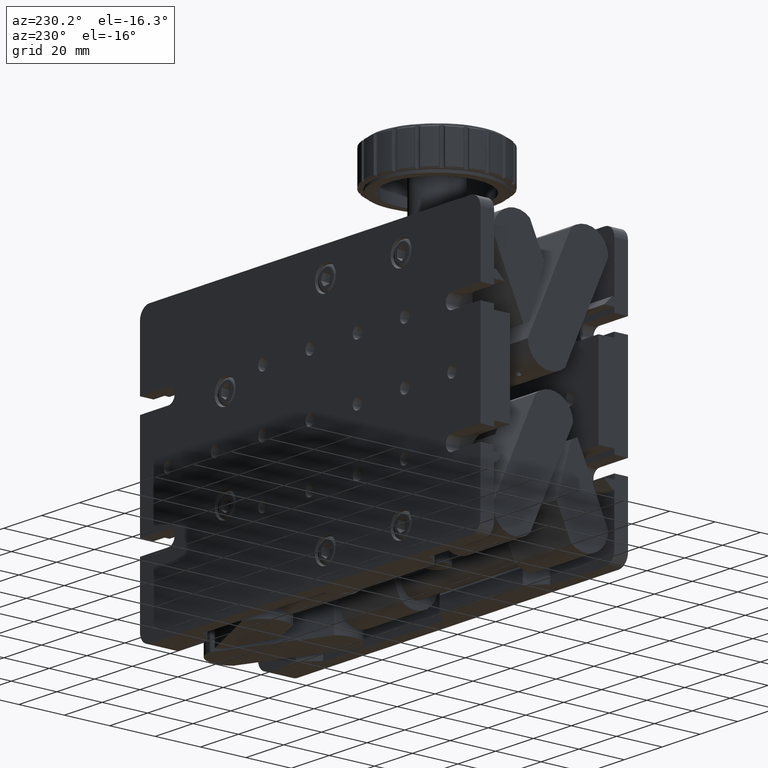
[diagram: clean part render]
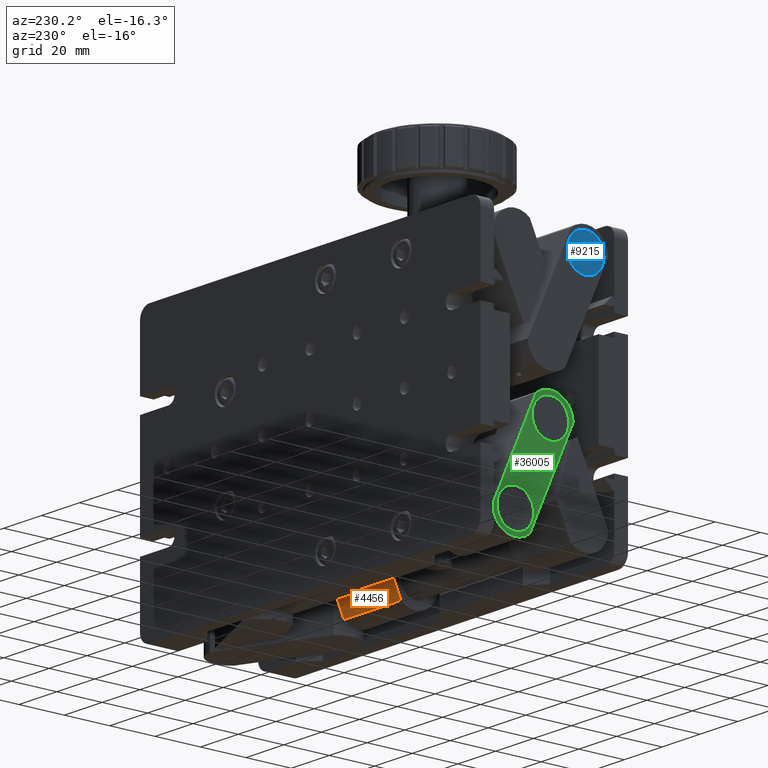
[diagram: same view with three faces highlighted in distinct colors, each labeled with its STEP entity id]
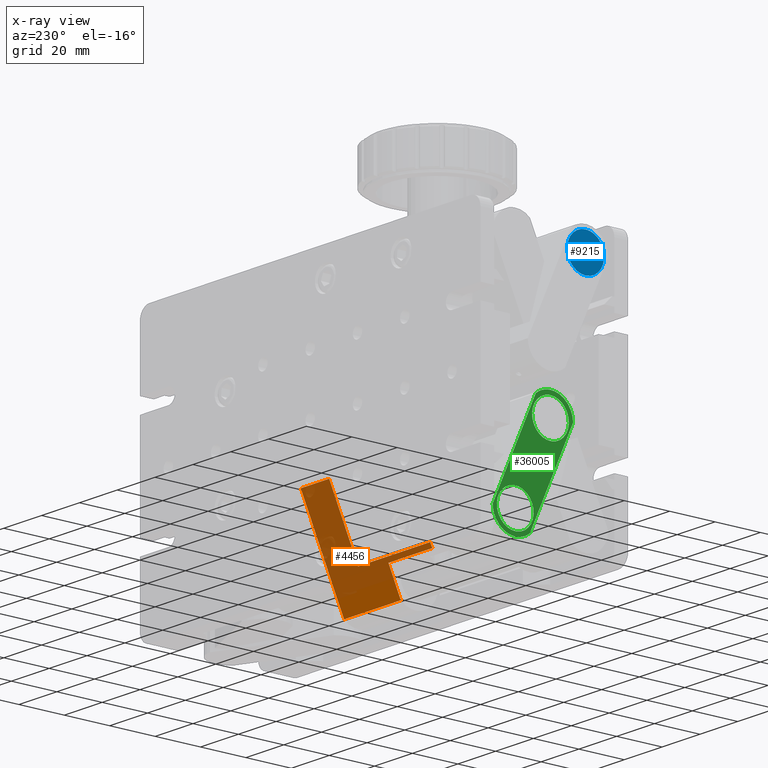
[diagram: x-ray of the same camera — body ghosted, the three highlighted faces saturated]
A machine part, auxiliary view with three faces highlighted in distinct colors.
The next image is the same camera in x-ray (body ghosted, the three faces saturated) — at least one of them is partly hidden behind the body in this view.
Their STEP definitions:

[orange] entity #4456 — the highlighted planar face has unit normal (0, -0.913, 0.4079).
#7 = CARTESIAN_POINT ( 'NONE',  ( -87.99999999999975800, 29.75455774710013700, -41.51479592859999500 ) ) ;
#535 = CARTESIAN_POINT ( 'NONE',  ( 16.99999999999985800, 44.79620801757791800, -7.845662502743422800 ) ) ;
#1377 = EDGE_CURVE ( 'NONE', #51273, #4508, #35140, .T. ) ;
#3192 = CARTESIAN_POINT ( 'NONE',  ( -21.07949976497319600, 29.75455774710015100, -41.51479592859993800 ) ) ;
#4456 = ADVANCED_FACE ( 'NONE', ( #62793 ), #21611, .F. ) ;
#4483 = DIRECTION ( 'NONE',  ( 1.000000000000000000, 4.732300826004708100E-017, 1.058711050402823100E-016 ) ) ;
#4508 = VERTEX_POINT ( 'NONE', #31837 ) ;
#4783 = ORIENTED_EDGE ( 'NONE', *, *, #19665, .T. ) ;
#6203 = ORIENTED_EDGE ( 'NONE', *, *, #8650, .T. ) ;
#6870 = LINE ( 'NONE', #7, #38122 ) ;
#8094 = CARTESIAN_POINT ( 'NONE',  ( -21.10755858015620800, 29.46365465077749200, -42.16595155234858800 ) ) ;
#8283 = CARTESIAN_POINT ( 'NONE',  ( 1.999999999999897600, 23.43928871165994100, -55.65085360517972600 ) ) ;
#8650 = EDGE_CURVE ( 'NONE', #27781, #43756, #15634, .T. ) ;
#9056 = ORIENTED_EDGE ( 'NONE', *, *, #22208, .F. ) ;
#11711 = DIRECTION ( 'NONE',  ( -1.000000000000000000, -4.732300826004708100E-017, -1.058711050402823100E-016 ) ) ;
#14581 = VECTOR ( 'NONE', #51820, 1000.000000000000000 ) ;
#14645 = ORIENTED_EDGE ( 'NONE', *, *, #46507, .F. ) ;
#15030 = LINE ( 'NONE', #18708, #36389 ) ;
#15634 = LINE ( 'NONE', #535, #22536 ) ;
#16047 = CARTESIAN_POINT ( 'NONE',  ( -87.99999999999975800, 44.79620801757790400, -7.845662502743384600 ) ) ;
#17530 = AXIS2_PLACEMENT_3D ( 'NONE', #16047, #55010, #60364 ) ;
#18708 = CARTESIAN_POINT ( 'NONE',  ( 1.999999999999897600, 21.13831328073574800, -60.80134224175304800 ) ) ;
#18986 = CARTESIAN_POINT ( 'NONE',  ( -21.18569522680609300, 28.88831328073578000, -43.45379198242221700 ) ) ;
#19665 = EDGE_CURVE ( 'NONE', #40164, #51273, #29183, .T. ) ;
#21611 = PLANE ( 'NONE',  #17530 ) ;
#22208 = EDGE_CURVE ( 'NONE', #42653, #30934, #34880, .T. ) ;
#22536 = VECTOR ( 'NONE', #34601, 1000.000000000000000 ) ;
#27781 = VERTEX_POINT ( 'NONE', #38166 ) ;
#28399 = DIRECTION ( 'NONE',  ( 1.000000000000000000, 1.507032115547909100E-019, 2.809201787083444500E-019 ) ) ;
#28851 = EDGE_CURVE ( 'NONE', #4508, #27781, #6870, .T. ) ;
#28866 = CARTESIAN_POINT ( 'NONE',  ( 31.99999999999987600, 23.43928871165996200, -55.65085360517971200 ) ) ;
#29183 = LINE ( 'NONE', #46427, #60411 ) ;
#30483 = CARTESIAN_POINT ( 'NONE',  ( 1.999999999999988000, 28.88831328073576500, -43.45379198242231000 ) ) ;
#30708 = EDGE_CURVE ( 'NONE', #45055, #40164, #15030, .T. ) ;
#30934 = VERTEX_POINT ( 'NONE', #49288 ) ;
#31066 = ORIENTED_EDGE ( 'NONE', *, *, #1377, .T. ) ;
#31837 = CARTESIAN_POINT ( 'NONE',  ( -21.07949976497319600, 29.75455774710015100, -41.51479592859993800 ) ) ;
#31995 = LINE ( 'NONE', #53092, #42666 ) ;
#32313 = ORIENTED_EDGE ( 'NONE', *, *, #55772, .T. ) ;
#32544 = EDGE_LOOP ( 'NONE', ( #14645, #37602, #4783, #31066, #52716, #6203, #32313, #9056 ) ) ;
#33499 = DIRECTION ( 'NONE',  ( -3.179593057106406400E-019, 0.4078947368421031400, 0.9130289610173991700 ) ) ;
#34152 = VECTOR ( 'NONE', #33499, 1000.000000000000000 ) ;
#34601 = DIRECTION ( 'NONE',  ( -3.179593057105420300E-019, 0.4078947368421031400, 0.9130289610173991700 ) ) ;
#34880 = LINE ( 'NONE', #62678, #34152 ) ;
#35140 =( BOUNDED_CURVE ( )  B_SPLINE_CURVE ( 3, ( #47871, #52554, #8094, #3192 ),
 .UNSPECIFIED., .F., .F. ) 
 B_SPLINE_CURVE_WITH_KNOTS ( ( 4, 4 ),
 ( 1.339945662735004400, 1.419940952688543600 ),
 .UNSPECIFIED. ) 
 CURVE ( )  GEOMETRIC_REPRESENTATION_ITEM ( )  RATIONAL_B_SPLINE_CURVE ( ( 1.000000000000000000, 0.9994668005560118900, 0.9994668005560118900, 1.000000000000000000 ) ) 
 REPRESENTATION_ITEM ( '' )  );
#36389 = VECTOR ( 'NONE', #57899, 1000.000000000000000 ) ;
#37602 = ORIENTED_EDGE ( 'NONE', *, *, #30708, .T. ) ;
#38122 = VECTOR ( 'NONE', #4483, 1000.000000000000000 ) ;
#38166 = CARTESIAN_POINT ( 'NONE',  ( 16.99999999999985800, 29.75455774710015400, -41.51479592859990200 ) ) ;
#40164 = VERTEX_POINT ( 'NONE', #30483 ) ;
#42653 = VERTEX_POINT ( 'NONE', #28866 ) ;
#42666 = VECTOR ( 'NONE', #28399, 1000.000000000000000 ) ;
#43756 = VERTEX_POINT ( 'NONE', #46778 ) ;
#45055 = VERTEX_POINT ( 'NONE', #8283 ) ;
#46427 = CARTESIAN_POINT ( 'NONE',  ( 1.999999999999988000, 28.88831328073576500, -43.45379198242231000 ) ) ;
#46507 = EDGE_CURVE ( 'NONE', #45055, #42653, #31995, .T. ) ;
#46778 = CARTESIAN_POINT ( 'NONE',  ( 16.99999999999997900, 42.49523258665367800, -12.99615113931675700 ) ) ;
#47871 = CARTESIAN_POINT ( 'NONE',  ( -21.18569522680609300, 28.88831328073578000, -43.45379198242221700 ) ) ;
#49288 = CARTESIAN_POINT ( 'NONE',  ( 31.99999999999987600, 42.49523258665365000, -12.99615113931677400 ) ) ;
#51273 = VERTEX_POINT ( 'NONE', #18986 ) ;
#51413 = CARTESIAN_POINT ( 'NONE',  ( -87.99999999999974400, 42.49523258665367800, -12.99615113931660400 ) ) ;
#51820 = DIRECTION ( 'NONE',  ( 1.000000000000000000, 1.507032115547909100E-019, 2.809201787083444500E-019 ) ) ;
#52554 = CARTESIAN_POINT ( 'NONE',  ( -21.14297595195679200, 29.17475245283139900, -42.81262837801322300 ) ) ;
#52716 = ORIENTED_EDGE ( 'NONE', *, *, #28851, .T. ) ;
#53092 = CARTESIAN_POINT ( 'NONE',  ( -87.99999999999975800, 23.43928871165995500, -55.65085360517971200 ) ) ;
#53467 = LINE ( 'NONE', #51413, #14581 ) ;
#55010 = DIRECTION ( 'NONE',  ( 2.301053429997931900E-020, -0.9130289610173992800, 0.4078947368421031400 ) ) ;
#55772 = EDGE_CURVE ( 'NONE', #43756, #30934, #53467, .T. ) ;
#57899 = DIRECTION ( 'NONE',  ( -1.829204304611620100E-016, 0.4078947368421031400, 0.9130289610173991700 ) ) ;
#60364 = DIRECTION ( 'NONE',  ( -1.000000000000000000, -1.507032115547908900E-019, -2.809201787083444000E-019 ) ) ;
#60411 = VECTOR ( 'NONE', #11711, 1000.000000000000000 ) ;
#62678 = CARTESIAN_POINT ( 'NONE',  ( 31.99999999999987600, 44.79620801757786100, -7.845662502743579100 ) ) ;
#62793 = FACE_OUTER_BOUND ( 'NONE', #32544, .T. ) ;

[blue] entity #9215 — the highlighted planar face has unit normal (-1, 0, 0).
#1955 = EDGE_LOOP ( 'NONE', ( #15341, #28468 ) ) ;
#2274 = CARTESIAN_POINT ( 'NONE',  ( -88.00000000000000000, 17.00000000000026600, 47.99999999999980800 ) ) ;
#4082 = DIRECTION ( 'NONE',  ( -1.000000000000000000, 9.134674007075038100E-016, -2.232431525478988200E-016 ) ) ;
#7766 = AXIS2_PLACEMENT_3D ( 'NONE', #62002, #4082, #57078 ) ;
#7998 = FACE_OUTER_BOUND ( 'NONE', #1955, .T. ) ;
#9215 = ADVANCED_FACE ( 'NONE', ( #7998 ), #45754, .T. ) ;
#14452 = CARTESIAN_POINT ( 'NONE',  ( -88.00000000000000000, 17.00000000000028100, 56.14999999999981400 ) ) ;
#15341 = ORIENTED_EDGE ( 'NONE', *, *, #31587, .T. ) ;
#16123 = CARTESIAN_POINT ( 'NONE',  ( -88.00000000000000000, 17.00000000000024900, 39.84999999999980200 ) ) ;
#20890 = EDGE_CURVE ( 'NONE', #46122, #28117, #61030, .T. ) ;
#26162 = CARTESIAN_POINT ( 'NONE',  ( -88.00000000000000000, 17.00000000000026600, 47.99999999999980800 ) ) ;
#28117 = VERTEX_POINT ( 'NONE', #16123 ) ;
#28468 = ORIENTED_EDGE ( 'NONE', *, *, #20890, .T. ) ;
#30579 = AXIS2_PLACEMENT_3D ( 'NONE', #26162, #30888, #45340 ) ;
#30888 = DIRECTION ( 'NONE',  ( -1.000000000000000000, 9.134674007075044000E-016, 1.515632677737323900E-016 ) ) ;
#31587 = EDGE_CURVE ( 'NONE', #28117, #46122, #50695, .T. ) ;
#35724 = DIRECTION ( 'NONE',  ( -1.000000000000000000, 9.134674007075038100E-016, -2.232431525478988200E-016 ) ) ;
#38279 = AXIS2_PLACEMENT_3D ( 'NONE', #2274, #35724, #60000 ) ;
#45340 = DIRECTION ( 'NONE',  ( 1.515632677737341400E-016, 1.923219084249843300E-015, 1.000000000000000000 ) ) ;
#45754 = PLANE ( 'NONE',  #30579 ) ;
#46122 = VERTEX_POINT ( 'NONE', #14452 ) ;
#50695 = CIRCLE ( 'NONE', #7766, 8.150000000000025200 ) ;
#57078 = DIRECTION ( 'NONE',  ( 0.0000000000000000000, 2.128495062548222900E-015, 1.000000000000000000 ) ) ;
#60000 = DIRECTION ( 'NONE',  ( 0.0000000000000000000, 2.128495062548222900E-015, 1.000000000000000000 ) ) ;
#61030 = CIRCLE ( 'NONE', #38279, 8.150000000000025200 ) ;
#62002 = CARTESIAN_POINT ( 'NONE',  ( -88.00000000000000000, 17.00000000000026600, 47.99999999999980800 ) ) ;

[green] entity #36005 — the highlighted planar face has unit normal (1, -0, 0).
#177 = EDGE_CURVE ( 'NONE', #31348, #15303, #46379, .T. ) ;
#231 = EDGE_CURVE ( 'NONE', #15009, #1530, #25053, .T. ) ;
#1316 = CARTESIAN_POINT ( 'NONE',  ( -87.99999999999985800, 32.50000000000027000, -13.30489948133847400 ) ) ;
#1530 = VERTEX_POINT ( 'NONE', #5091 ) ;
#2720 = ORIENTED_EDGE ( 'NONE', *, *, #177, .F. ) ;
#3373 = VERTEX_POINT ( 'NONE', #15125 ) ;
#3507 = DIRECTION ( 'NONE',  ( 0.0000000000000000000, -0.4078947368421089200, 0.9130289610173966100 ) ) ;
#3564 = ORIENTED_EDGE ( 'NONE', *, *, #56658, .F. ) ;
#3708 = DIRECTION ( 'NONE',  ( -1.000000000000000000, 1.651238426859831600E-017, -4.451015350880970200E-017 ) ) ;
#3767 = CARTESIAN_POINT ( 'NONE',  ( -87.99999999999985800, 22.50476741334679800, -12.99615113931670900 ) ) ;
#4685 = CARTESIAN_POINT ( 'NONE',  ( -87.99999999999985800, 48.00000000000041900, -47.99999999999960200 ) ) ;
#5091 = CARTESIAN_POINT ( 'NONE',  ( -87.99999999999985800, 44.69605263157933500, -40.60446541575869600 ) ) ;
#5110 = VERTEX_POINT ( 'NONE', #28031 ) ;
#5642 = LINE ( 'NONE', #12065, #23242 ) ;
#5873 = DIRECTION ( 'NONE',  ( -1.000000000000000000, 1.651238426859831600E-017, -4.451015350880970200E-017 ) ) ;
#6078 = DIRECTION ( 'NONE',  ( 0.0000000000000000000, -0.4078947368421088100, 0.9130289610173966100 ) ) ;
#6567 = ORIENTED_EDGE ( 'NONE', *, *, #231, .F. ) ;
#7052 = EDGE_LOOP ( 'NONE', ( #57818, #38178, #37372, #59605, #50128 ) ) ;
#8912 = CARTESIAN_POINT ( 'NONE',  ( -87.99999999999985800, 36.63831328073578700, -0.5035572395854435200 ) ) ;
#10899 = VERTEX_POINT ( 'NONE', #33066 ) ;
#12065 = CARTESIAN_POINT ( 'NONE',  ( -87.99999999999985800, 36.63831328073578700, -0.5035572395854435200 ) ) ;
#12185 = CIRCLE ( 'NONE', #13078, 8.099999999999994300 ) ;
#12534 = FACE_BOUND ( 'NONE', #13940, .T. ) ;
#12622 = CARTESIAN_POINT ( 'NONE',  ( -87.99999999999985800, 38.93928871165996200, -5.654045876158750000 ) ) ;
#12626 = DIRECTION ( 'NONE',  ( -1.000000000000000000, 1.651238426859831600E-017, -4.451015350880970200E-017 ) ) ;
#13078 = AXIS2_PLACEMENT_3D ( 'NONE', #36691, #60320, #31792 ) ;
#13940 = EDGE_LOOP ( 'NONE', ( #3564, #2720 ) ) ;
#14020 = AXIS2_PLACEMENT_3D ( 'NONE', #22029, #12626, #26903 ) ;
#14385 = EDGE_CURVE ( 'NONE', #3373, #5110, #18960, .T. ) ;
#14859 = CIRCLE ( 'NONE', #46600, 8.099999999999994300 ) ;
#15009 = VERTEX_POINT ( 'NONE', #35682 ) ;
#15125 = CARTESIAN_POINT ( 'NONE',  ( -87.99999999999985800, 57.99523258665383500, -48.30874834202138900 ) ) ;
#15303 = VERTEX_POINT ( 'NONE', #17107 ) ;
#16600 = ORIENTED_EDGE ( 'NONE', *, *, #17768, .F. ) ;
#16652 = CIRCLE ( 'NONE', #45362, 10.00000000000000200 ) ;
#16765 = EDGE_CURVE ( 'NONE', #23134, #10899, #53855, .T. ) ;
#16953 = FACE_OUTER_BOUND ( 'NONE', #7052, .T. ) ;
#17107 = CARTESIAN_POINT ( 'NONE',  ( -87.99999999999985800, 29.19605263157919200, -5.909364897097567000 ) ) ;
#17768 = EDGE_CURVE ( 'NONE', #1530, #15009, #14859, .T. ) ;
#18960 = CIRCLE ( 'NONE', #57364, 9.999999999999992900 ) ;
#20756 = CARTESIAN_POINT ( 'NONE',  ( -87.99999999999985800, 32.50000000000027000, -13.30489948133847400 ) ) ;
#22029 = CARTESIAN_POINT ( 'NONE',  ( -87.99999999999985800, 32.50000000000027000, -13.30489948133847400 ) ) ;
#23134 = VERTEX_POINT ( 'NONE', #3767 ) ;
#23242 = VECTOR ( 'NONE', #37050, 1000.000000000000100 ) ;
#23798 = PLANE ( 'NONE',  #46093 ) ;
#25053 = CIRCLE ( 'NONE', #36915, 8.099999999999994300 ) ;
#26903 = DIRECTION ( 'NONE',  ( 0.0000000000000000000, -0.4078947368421089200, 0.9130289610173966100 ) ) ;
#28031 = CARTESIAN_POINT ( 'NONE',  ( -87.99999999999985800, 41.56071128834071300, -55.65085360517935700 ) ) ;
#31348 = VERTEX_POINT ( 'NONE', #58444 ) ;
#31792 = DIRECTION ( 'NONE',  ( 0.0000000000000000000, -0.4078947368421089200, 0.9130289610173966100 ) ) ;
#32575 = DIRECTION ( 'NONE',  ( 1.000000000000000000, -1.651238426859811600E-017, 4.451015350880925200E-017 ) ) ;
#32602 = EDGE_CURVE ( 'NONE', #5110, #23134, #45983, .T. ) ;
#32680 = CARTESIAN_POINT ( 'NONE',  ( -87.99999999999985800, 48.00000000000041900, -47.99999999999960200 ) ) ;
#33066 = CARTESIAN_POINT ( 'NONE',  ( -87.99999999999985800, 28.42105263157919700, -4.174609871164500800 ) ) ;
#34068 = DIRECTION ( 'NONE',  ( 0.0000000000000000000, -0.4078947368421088100, 0.9130289610173967200 ) ) ;
#35682 = CARTESIAN_POINT ( 'NONE',  ( -87.99999999999985800, 51.30394736842149700, -55.39553458424051500 ) ) ;
#36005 = ADVANCED_FACE ( 'NONE', ( #12534, #51304, #16953 ), #23798, .F. ) ;
#36118 = VECTOR ( 'NONE', #39604, 1000.000000000000100 ) ;
#36691 = CARTESIAN_POINT ( 'NONE',  ( -87.99999999999985800, 32.50000000000027000, -13.30489948133847400 ) ) ;
#36915 = AXIS2_PLACEMENT_3D ( 'NONE', #32680, #3708, #3507 ) ;
#37050 = DIRECTION ( 'NONE',  ( -4.737437384874854300E-017, -0.4078947368421088100, 0.9130289610173966100 ) ) ;
#37372 = ORIENTED_EDGE ( 'NONE', *, *, #57745, .T. ) ;
#38178 = ORIENTED_EDGE ( 'NONE', *, *, #16765, .T. ) ;
#38904 = VERTEX_POINT ( 'NONE', #12622 ) ;
#39604 = DIRECTION ( 'NONE',  ( -4.737437384874854300E-017, -0.4078947368421088100, 0.9130289610173966100 ) ) ;
#40274 = DIRECTION ( 'NONE',  ( -1.000000000000000000, 1.651238426859831600E-017, -4.451015350880970200E-017 ) ) ;
#40460 = AXIS2_PLACEMENT_3D ( 'NONE', #1316, #40274, #45133 ) ;
#42969 = DIRECTION ( 'NONE',  ( 4.737437384874854300E-017, 0.4078947368421088100, -0.9130289610173966100 ) ) ;
#45133 = DIRECTION ( 'NONE',  ( 0.0000000000000000000, -0.4078947368421088100, 0.9130289610173966100 ) ) ;
#45362 = AXIS2_PLACEMENT_3D ( 'NONE', #20756, #5873, #6078 ) ;
#45983 = LINE ( 'NONE', #59176, #36118 ) ;
#46093 = AXIS2_PLACEMENT_3D ( 'NONE', #8912, #32575, #42969 ) ;
#46379 = CIRCLE ( 'NONE', #14020, 8.099999999999994300 ) ;
#46600 = AXIS2_PLACEMENT_3D ( 'NONE', #52026, #46726, #52235 ) ;
#46726 = DIRECTION ( 'NONE',  ( -1.000000000000000000, 1.651238426859831600E-017, -4.451015350880970200E-017 ) ) ;
#48511 = DIRECTION ( 'NONE',  ( -1.000000000000000000, 1.651238426859831600E-017, -4.451015350880970200E-017 ) ) ;
#50128 = ORIENTED_EDGE ( 'NONE', *, *, #14385, .T. ) ;
#51304 = FACE_BOUND ( 'NONE', #53817, .T. ) ;
#52026 = CARTESIAN_POINT ( 'NONE',  ( -87.99999999999985800, 48.00000000000041900, -47.99999999999960200 ) ) ;
#52235 = DIRECTION ( 'NONE',  ( 0.0000000000000000000, -0.4078947368421089200, 0.9130289610173966100 ) ) ;
#53817 = EDGE_LOOP ( 'NONE', ( #16600, #6567 ) ) ;
#53855 = CIRCLE ( 'NONE', #40460, 10.00000000000000200 ) ;
#56658 = EDGE_CURVE ( 'NONE', #15303, #31348, #12185, .T. ) ;
#57364 = AXIS2_PLACEMENT_3D ( 'NONE', #4685, #48511, #34068 ) ;
#57745 = EDGE_CURVE ( 'NONE', #10899, #38904, #16652, .T. ) ;
#57818 = ORIENTED_EDGE ( 'NONE', *, *, #32602, .T. ) ;
#58444 = CARTESIAN_POINT ( 'NONE',  ( -87.99999999999985800, 35.80394736842132600, -20.70043406557939400 ) ) ;
#59176 = CARTESIAN_POINT ( 'NONE',  ( -87.99999999999985800, 20.20379198242257600, -7.845662502743506300 ) ) ;
#59605 = ORIENTED_EDGE ( 'NONE', *, *, #60558, .F. ) ;
#60320 = DIRECTION ( 'NONE',  ( -1.000000000000000000, 1.651238426859831600E-017, -4.451015350880970200E-017 ) ) ;
#60558 = EDGE_CURVE ( 'NONE', #3373, #38904, #5642, .T. ) ;